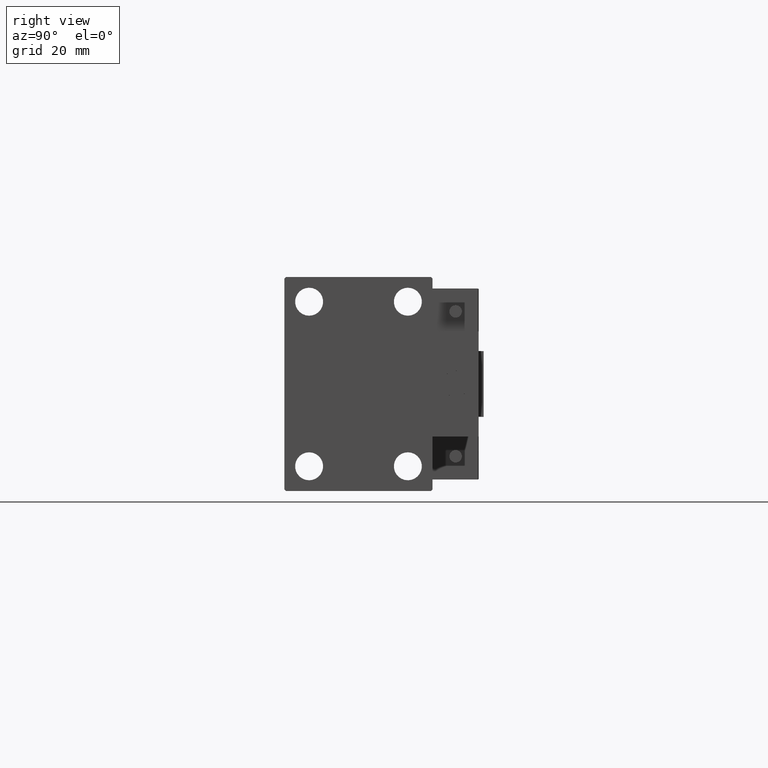
[diagram: clean part render]
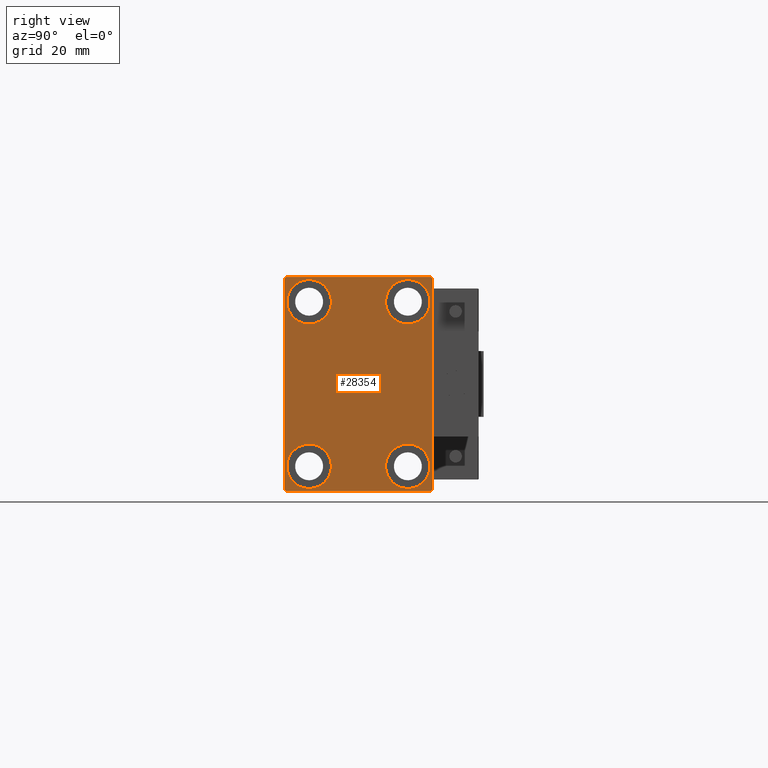
[diagram: same view with one face highlighted and labeled with its STEP entity id]
A machine part, right view. The second image highlights one B-rep face of the part: STEP entity #28354.
In plain terms, the highlighted planar face has unit normal (1, 0, 0).
Its self-contained STEP definition (entity closure, byte-faithful):
#210 = CARTESIAN_POINT ( 'NONE',  ( 130.0000000000000000, -22.50000000000000711, 31.99999999999999289 ) ) ;
#316 = DIRECTION ( 'NONE',  ( 0.000000000000000000, 0.000000000000000000, 1.000000000000000000 ) ) ;
#1024 = DIRECTION ( 'NONE',  ( 0.000000000000000000, -1.067522139062650425E-16, 1.000000000000000000 ) ) ;
#1247 = ORIENTED_EDGE ( 'NONE', *, *, #31597, .T. ) ;
#1749 = DIRECTION ( 'NONE',  ( 0.000000000000000000, -1.000000000000000000, -1.541976423090495387E-16 ) ) ;
#1759 = VECTOR ( 'NONE', #7422, 1000.000000000000000 ) ;
#2048 = ORIENTED_EDGE ( 'NONE', *, *, #10166, .T. ) ;
#2183 = LINE ( 'NONE', #9131, #27976 ) ;
#2731 = CIRCLE ( 'NONE', #31197, 6.749999999999999112 ) ;
#3336 = DIRECTION ( 'NONE',  ( 0.000000000000000000, 0.000000000000000000, 1.000000000000000000 ) ) ;
#3526 = CARTESIAN_POINT ( 'NONE',  ( 130.0000000000000000, 0.000000000000000000, 0.000000000000000000 ) ) ;
#3817 = CARTESIAN_POINT ( 'NONE',  ( 130.0000000000000000, -15.00000000000000355, -25.00000000000000000 ) ) ;
#3843 = ORIENTED_EDGE ( 'NONE', *, *, #33903, .T. ) ;
#4098 = CARTESIAN_POINT ( 'NONE',  ( 130.0000000000000000, 15.00000000000000355, 25.00000000000000000 ) ) ;
#4264 = DIRECTION ( 'NONE',  ( -1.000000000000000000, -0.000000000000000000, -0.000000000000000000 ) ) ;
#5687 = VERTEX_POINT ( 'NONE', #7173 ) ;
#5932 = CARTESIAN_POINT ( 'NONE',  ( 130.0000000000000000, 15.00000000000000355, 18.25000000000000355 ) ) ;
#6058 = VECTOR ( 'NONE', #1024, 1000.000000000000000 ) ;
#6300 = DIRECTION ( 'NONE',  ( -0.000000000000000000, 0.7071067811865474617, 0.7071067811865474617 ) ) ;
#6730 = ORIENTED_EDGE ( 'NONE', *, *, #26499, .T. ) ;
#7173 = CARTESIAN_POINT ( 'NONE',  ( 130.0000000000000000, -14.99999999999999645, 18.25000000000000355 ) ) ;
#7422 = DIRECTION ( 'NONE',  ( 0.000000000000000000, 1.000000000000000000, 0.000000000000000000 ) ) ;
#7906 = AXIS2_PLACEMENT_3D ( 'NONE', #21124, #47619, #44793 ) ;
#8135 = EDGE_CURVE ( 'NONE', #48696, #40514, #27331, .T. ) ;
#8491 = AXIS2_PLACEMENT_3D ( 'NONE', #4098, #19648, #316 ) ;
#8752 = EDGE_CURVE ( 'NONE', #5687, #12079, #27875, .T. ) ;
#8815 = LINE ( 'NONE', #32267, #14361 ) ;
#9131 = CARTESIAN_POINT ( 'NONE',  ( 130.0000000000000000, 27.24999999999955236, 27.25000000000068567 ) ) ;
#9607 = VERTEX_POINT ( 'NONE', #29075 ) ;
#10166 = EDGE_CURVE ( 'NONE', #24208, #48696, #8815, .T. ) ;
#10652 = FACE_BOUND ( 'NONE', #38051, .T. ) ;
#11733 = ORIENTED_EDGE ( 'NONE', *, *, #12958, .T. ) ;
#11905 = DIRECTION ( 'NONE',  ( 0.000000000000000000, 0.000000000000000000, 1.000000000000000000 ) ) ;
#12079 = VERTEX_POINT ( 'NONE', #26642 ) ;
#12486 = VERTEX_POINT ( 'NONE', #38268 ) ;
#12958 = EDGE_CURVE ( 'NONE', #23632, #43745, #26660, .T. ) ;
#12995 = ORIENTED_EDGE ( 'NONE', *, *, #8135, .T. ) ;
#13945 = EDGE_CURVE ( 'NONE', #39449, #21391, #32369, .T. ) ;
#14114 = CARTESIAN_POINT ( 'NONE',  ( 130.0000000000000000, -15.00000000000000355, -31.75000000000000000 ) ) ;
#14361 = VECTOR ( 'NONE', #32761, 1000.000000000000114 ) ;
#14796 = CARTESIAN_POINT ( 'NONE',  ( 130.0000000000000000, -14.99999999999999645, 25.00000000000000000 ) ) ;
#14945 = VERTEX_POINT ( 'NONE', #19892 ) ;
#14986 = DIRECTION ( 'NONE',  ( 1.000000000000000000, 0.000000000000000000, 0.000000000000000000 ) ) ;
#15198 = CARTESIAN_POINT ( 'NONE',  ( 130.0000000000000000, 14.99999999999999645, -31.75000000000000000 ) ) ;
#15667 = CARTESIAN_POINT ( 'NONE',  ( 130.0000000000000000, -27.25000000000033040, -27.24999999999957367 ) ) ;
#16578 = AXIS2_PLACEMENT_3D ( 'NONE', #14796, #49426, #3336 ) ;
#17265 = EDGE_LOOP ( 'NONE', ( #50226, #2048, #12995, #46293, #6730, #39388, #50194, #31351 ) ) ;
#17321 = PLANE ( 'NONE',  #40060 ) ;
#17417 = CIRCLE ( 'NONE', #44225, 6.749999999999999112 ) ;
#17712 = EDGE_LOOP ( 'NONE', ( #43625, #11733 ) ) ;
#18837 = DIRECTION ( 'NONE',  ( -1.000000000000000000, -0.000000000000000000, -0.000000000000000000 ) ) ;
#19648 = DIRECTION ( 'NONE',  ( -1.000000000000000000, -0.000000000000000000, -0.000000000000000000 ) ) ;
#19667 = VECTOR ( 'NONE', #47486, 1000.000000000000114 ) ;
#19892 = CARTESIAN_POINT ( 'NONE',  ( 130.0000000000000000, 15.00000000000000355, 31.75000000000000000 ) ) ;
#20185 = CARTESIAN_POINT ( 'NONE',  ( 130.0000000000000000, 14.99999999999999645, -25.00000000000000000 ) ) ;
#20426 = VECTOR ( 'NONE', #6300, 1000.000000000000114 ) ;
#20600 = DIRECTION ( 'NONE',  ( -0.000000000000000000, -0.7071067811865622277, 0.7071067811865328068 ) ) ;
#20616 = CARTESIAN_POINT ( 'NONE',  ( 130.0000000000000000, 22.50000000000000000, -32.50000000000000711 ) ) ;
#20845 = LINE ( 'NONE', #32560, #40037 ) ;
#21124 = CARTESIAN_POINT ( 'NONE',  ( 130.0000000000000000, -15.00000000000000355, -25.00000000000000000 ) ) ;
#21128 = FACE_BOUND ( 'NONE', #41060, .T. ) ;
#21391 = VERTEX_POINT ( 'NONE', #15198 ) ;
#21510 = AXIS2_PLACEMENT_3D ( 'NONE', #35351, #4264, #11905 ) ;
#22999 = DIRECTION ( 'NONE',  ( 0.000000000000000000, 0.000000000000000000, -1.000000000000000000 ) ) ;
#23632 = VERTEX_POINT ( 'NONE', #39181 ) ;
#24208 = VERTEX_POINT ( 'NONE', #24861 ) ;
#24765 = EDGE_CURVE ( 'NONE', #12486, #33080, #37624, .T. ) ;
#24861 = CARTESIAN_POINT ( 'NONE',  ( 130.0000000000000000, -21.99999999999999289, 32.49999999999999289 ) ) ;
#24977 = CARTESIAN_POINT ( 'NONE',  ( 130.0000000000000000, -22.50000000000000711, -32.00000000000002132 ) ) ;
#25209 = FACE_OUTER_BOUND ( 'NONE', #17265, .T. ) ;
#25674 = CARTESIAN_POINT ( 'NONE',  ( 130.0000000000000000, 27.25000000000000711, -27.25000000000000711 ) ) ;
#26499 = EDGE_CURVE ( 'NONE', #47861, #12486, #49456, .T. ) ;
#26642 = CARTESIAN_POINT ( 'NONE',  ( 130.0000000000000000, -14.99999999999999645, 31.75000000000000000 ) ) ;
#26660 = CIRCLE ( 'NONE', #7906, 6.749999999999999112 ) ;
#27296 = DIRECTION ( 'NONE',  ( 0.000000000000000000, 0.000000000000000000, 1.000000000000000000 ) ) ;
#27331 = LINE ( 'NONE', #30651, #48175 ) ;
#27875 = CIRCLE ( 'NONE', #31091, 6.749999999999999112 ) ;
#27976 = VECTOR ( 'NONE', #20600, 1000.000000000000000 ) ;
#28354 = ADVANCED_FACE ( 'NONE', ( #45548, #10652, #21128, #36659, #25209 ), #17321, .T. ) ;
#29075 = CARTESIAN_POINT ( 'NONE',  ( 130.0000000000000000, 22.49999999999999289, 32.00000000000004974 ) ) ;
#29710 = CARTESIAN_POINT ( 'NONE',  ( 130.0000000000000000, 22.00000000000002132, 32.50000000000000000 ) ) ;
#30651 = CARTESIAN_POINT ( 'NONE',  ( 130.0000000000000000, -22.50000000000000711, 32.49999999999999289 ) ) ;
#30781 = CARTESIAN_POINT ( 'NONE',  ( 130.0000000000000000, 14.99999999999999645, -18.25000000000000355 ) ) ;
#30824 = DIRECTION ( 'NONE',  ( -1.000000000000000000, -0.000000000000000000, -0.000000000000000000 ) ) ;
#31022 = EDGE_CURVE ( 'NONE', #9607, #47672, #2183, .T. ) ;
#31091 = AXIS2_PLACEMENT_3D ( 'NONE', #34117, #18837, #45321 ) ;
#31109 = DIRECTION ( 'NONE',  ( -1.000000000000000000, -0.000000000000000000, -0.000000000000000000 ) ) ;
#31197 = AXIS2_PLACEMENT_3D ( 'NONE', #3817, #30824, #41786 ) ;
#31351 = ORIENTED_EDGE ( 'NONE', *, *, #31022, .T. ) ;
#31465 = LINE ( 'NONE', #15667, #19667 ) ;
#31597 = EDGE_CURVE ( 'NONE', #21391, #39449, #17417, .T. ) ;
#32004 = ORIENTED_EDGE ( 'NONE', *, *, #13945, .T. ) ;
#32267 = CARTESIAN_POINT ( 'NONE',  ( 130.0000000000000000, -27.25000000000000000, 27.25000000000000000 ) ) ;
#32369 = CIRCLE ( 'NONE', #42921, 6.749999999999999112 ) ;
#32560 = CARTESIAN_POINT ( 'NONE',  ( 130.0000000000000000, 22.49999999999999289, 32.50000000000000000 ) ) ;
#32705 = CARTESIAN_POINT ( 'NONE',  ( 130.0000000000000000, -22.00000000000003197, -32.50000000000000711 ) ) ;
#32761 = DIRECTION ( 'NONE',  ( 0.000000000000000000, -0.7071067811865474617, -0.7071067811865474617 ) ) ;
#32786 = EDGE_CURVE ( 'NONE', #44051, #14945, #48341, .T. ) ;
#33080 = VERTEX_POINT ( 'NONE', #39893 ) ;
#33903 = EDGE_CURVE ( 'NONE', #14945, #44051, #36998, .T. ) ;
#34117 = CARTESIAN_POINT ( 'NONE',  ( 130.0000000000000000, -14.99999999999999645, 25.00000000000000000 ) ) ;
#34309 = EDGE_CURVE ( 'NONE', #12079, #5687, #49890, .T. ) ;
#34823 = EDGE_LOOP ( 'NONE', ( #1247, #32004 ) ) ;
#35351 = CARTESIAN_POINT ( 'NONE',  ( 130.0000000000000000, 15.00000000000000355, 25.00000000000000000 ) ) ;
#35720 = DIRECTION ( 'NONE',  ( -1.000000000000000000, -0.000000000000000000, -0.000000000000000000 ) ) ;
#36542 = EDGE_CURVE ( 'NONE', #33080, #9607, #40474, .T. ) ;
#36659 = FACE_BOUND ( 'NONE', #17712, .T. ) ;
#36998 = CIRCLE ( 'NONE', #21510, 6.749999999999999112 ) ;
#37624 = LINE ( 'NONE', #25674, #20426 ) ;
#38051 = EDGE_LOOP ( 'NONE', ( #40383, #48455 ) ) ;
#38268 = CARTESIAN_POINT ( 'NONE',  ( 130.0000000000000000, 22.00000000000000000, -32.50000000000000711 ) ) ;
#39181 = CARTESIAN_POINT ( 'NONE',  ( 130.0000000000000000, -15.00000000000000355, -18.25000000000000355 ) ) ;
#39388 = ORIENTED_EDGE ( 'NONE', *, *, #24765, .T. ) ;
#39449 = VERTEX_POINT ( 'NONE', #30781 ) ;
#39893 = CARTESIAN_POINT ( 'NONE',  ( 130.0000000000000000, 22.50000000000000000, -32.00000000000002132 ) ) ;
#40037 = VECTOR ( 'NONE', #1749, 1000.000000000000000 ) ;
#40060 = AXIS2_PLACEMENT_3D ( 'NONE', #3526, #14986, #42725 ) ;
#40383 = ORIENTED_EDGE ( 'NONE', *, *, #8752, .T. ) ;
#40474 = LINE ( 'NONE', #20616, #6058 ) ;
#40514 = VERTEX_POINT ( 'NONE', #24977 ) ;
#41060 = EDGE_LOOP ( 'NONE', ( #47428, #3843 ) ) ;
#41489 = EDGE_CURVE ( 'NONE', #47672, #24208, #20845, .T. ) ;
#41786 = DIRECTION ( 'NONE',  ( 0.000000000000000000, 0.000000000000000000, 1.000000000000000000 ) ) ;
#41951 = EDGE_CURVE ( 'NONE', #40514, #47861, #31465, .T. ) ;
#42725 = DIRECTION ( 'NONE',  ( 0.000000000000000000, 0.000000000000000000, -1.000000000000000000 ) ) ;
#42921 = AXIS2_PLACEMENT_3D ( 'NONE', #20185, #35720, #47923 ) ;
#43625 = ORIENTED_EDGE ( 'NONE', *, *, #49154, .T. ) ;
#43745 = VERTEX_POINT ( 'NONE', #14114 ) ;
#44051 = VERTEX_POINT ( 'NONE', #5932 ) ;
#44225 = AXIS2_PLACEMENT_3D ( 'NONE', #47382, #31109, #27296 ) ;
#44793 = DIRECTION ( 'NONE',  ( 0.000000000000000000, 0.000000000000000000, 1.000000000000000000 ) ) ;
#45321 = DIRECTION ( 'NONE',  ( 0.000000000000000000, 0.000000000000000000, 1.000000000000000000 ) ) ;
#45395 = CARTESIAN_POINT ( 'NONE',  ( 130.0000000000000000, -22.50000000000000711, -32.50000000000000711 ) ) ;
#45548 = FACE_BOUND ( 'NONE', #34823, .T. ) ;
#46293 = ORIENTED_EDGE ( 'NONE', *, *, #41951, .T. ) ;
#47382 = CARTESIAN_POINT ( 'NONE',  ( 130.0000000000000000, 14.99999999999999645, -25.00000000000000000 ) ) ;
#47428 = ORIENTED_EDGE ( 'NONE', *, *, #32786, .T. ) ;
#47486 = DIRECTION ( 'NONE',  ( -0.000000000000000000, 0.7071067811865376918, -0.7071067811865573427 ) ) ;
#47619 = DIRECTION ( 'NONE',  ( -1.000000000000000000, -0.000000000000000000, -0.000000000000000000 ) ) ;
#47672 = VERTEX_POINT ( 'NONE', #29710 ) ;
#47861 = VERTEX_POINT ( 'NONE', #32705 ) ;
#47923 = DIRECTION ( 'NONE',  ( 0.000000000000000000, 0.000000000000000000, 1.000000000000000000 ) ) ;
#48175 = VECTOR ( 'NONE', #22999, 1000.000000000000000 ) ;
#48341 = CIRCLE ( 'NONE', #8491, 6.749999999999999112 ) ;
#48455 = ORIENTED_EDGE ( 'NONE', *, *, #34309, .T. ) ;
#48696 = VERTEX_POINT ( 'NONE', #210 ) ;
#49154 = EDGE_CURVE ( 'NONE', #43745, #23632, #2731, .T. ) ;
#49426 = DIRECTION ( 'NONE',  ( -1.000000000000000000, -0.000000000000000000, -0.000000000000000000 ) ) ;
#49456 = LINE ( 'NONE', #45395, #1759 ) ;
#49890 = CIRCLE ( 'NONE', #16578, 6.749999999999999112 ) ;
#50194 = ORIENTED_EDGE ( 'NONE', *, *, #36542, .T. ) ;
#50226 = ORIENTED_EDGE ( 'NONE', *, *, #41489, .T. ) ;